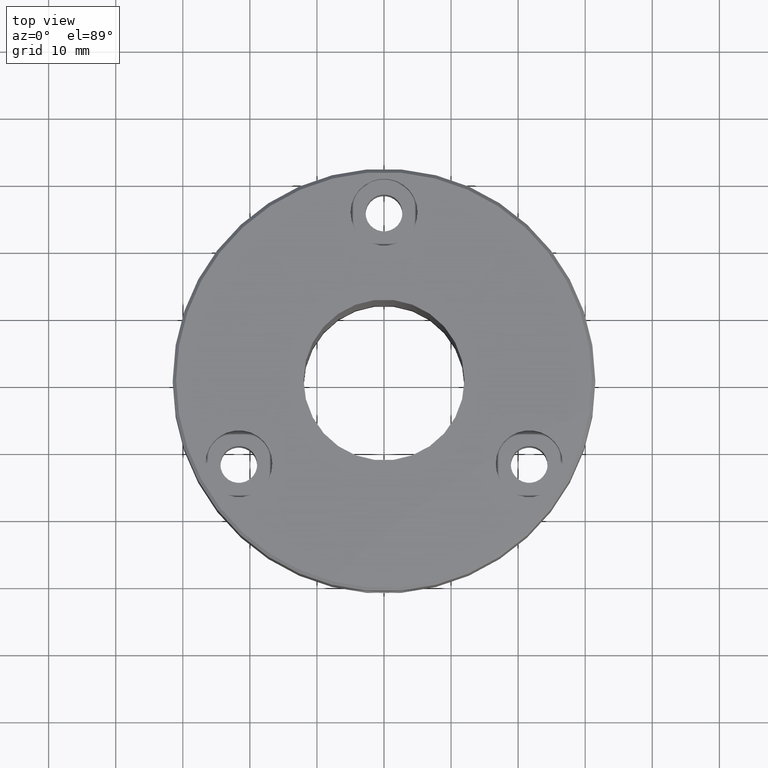
[diagram: clean part render]
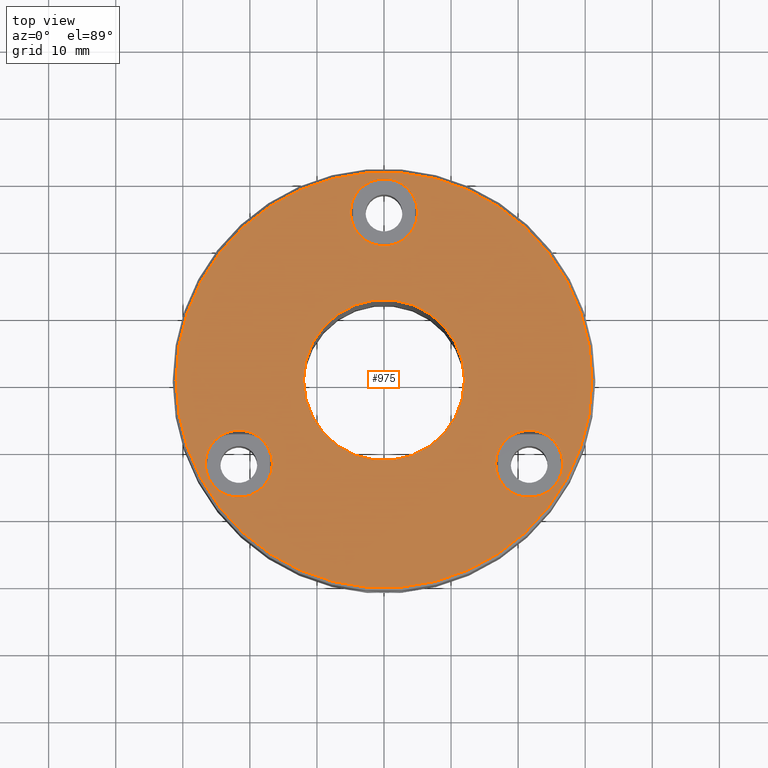
[diagram: same view with one face highlighted and labeled with its STEP entity id]
A machine part, top view. The second image highlights one B-rep face of the part: STEP entity #975.
In plain terms, the highlighted planar face has unit normal (0, -0, 1).
Its self-contained STEP definition (entity closure, byte-faithful):
#47 = FACE_OUTER_BOUND ( 'NONE', #851, .T. ) ;
#56 = AXIS2_PLACEMENT_3D ( 'NONE', #1144, #84, #571 ) ;
#66 = FACE_BOUND ( 'NONE', #717, .T. ) ;
#76 = EDGE_LOOP ( 'NONE', ( #656, #350 ) ) ;
#82 = CIRCLE ( 'NONE', #169, 12.00000000000000178 ) ;
#83 = CARTESIAN_POINT ( 'NONE',  ( -21.65063509461100111, -12.49999999999995381, 0.000000000000000000 ) ) ;
#84 = DIRECTION ( 'NONE',  ( 0.000000000000000000, 0.000000000000000000, -1.000000000000000000 ) ) ;
#102 = DIRECTION ( 'NONE',  ( 1.000000000000000000, 0.000000000000000000, 0.000000000000000000 ) ) ;
#141 = CARTESIAN_POINT ( 'NONE',  ( 26.65063509461091940, -12.50000000000010125, 0.000000000000000000 ) ) ;
#142 = AXIS2_PLACEMENT_3D ( 'NONE', #691, #959, #102 ) ;
#145 = EDGE_CURVE ( 'NONE', #576, #363, #816, .T. ) ;
#169 = AXIS2_PLACEMENT_3D ( 'NONE', #488, #1080, #411 ) ;
#220 = VERTEX_POINT ( 'NONE', #986 ) ;
#227 = DIRECTION ( 'NONE',  ( 1.000000000000000000, 0.000000000000000000, 0.000000000000000000 ) ) ;
#251 = ORIENTED_EDGE ( 'NONE', *, *, #741, .F. ) ;
#259 = AXIS2_PLACEMENT_3D ( 'NONE', #471, #392, #299 ) ;
#297 = CARTESIAN_POINT ( 'NONE',  ( -26.65063509461100111, -12.49999999999995381, 0.000000000000000000 ) ) ;
#299 = DIRECTION ( 'NONE',  ( 1.000000000000000000, 0.000000000000000000, 0.000000000000000000 ) ) ;
#328 = AXIS2_PLACEMENT_3D ( 'NONE', #1124, #1183, #332 ) ;
#332 = DIRECTION ( 'NONE',  ( 1.000000000000000000, 0.000000000000000000, 0.000000000000000000 ) ) ;
#344 = ORIENTED_EDGE ( 'NONE', *, *, #1212, .T. ) ;
#347 = DIRECTION ( 'NONE',  ( 1.000000000000000000, 0.000000000000000000, 0.000000000000000000 ) ) ;
#350 = ORIENTED_EDGE ( 'NONE', *, *, #669, .F. ) ;
#363 = VERTEX_POINT ( 'NONE', #397 ) ;
#389 = AXIS2_PLACEMENT_3D ( 'NONE', #463, #844, #1149 ) ;
#391 = AXIS2_PLACEMENT_3D ( 'NONE', #910, #1221, #652 ) ;
#392 = DIRECTION ( 'NONE',  ( -0.000000000000000000, -0.000000000000000000, 1.000000000000000000 ) ) ;
#396 = EDGE_CURVE ( 'NONE', #911, #583, #564, .T. ) ;
#397 = CARTESIAN_POINT ( 'NONE',  ( -30.99999999999998579, 0.000000000000000000, 0.000000000000000000 ) ) ;
#405 = CIRCLE ( 'NONE', #1098, 5.000000000000000888 ) ;
#406 = EDGE_CURVE ( 'NONE', #583, #911, #620, .T. ) ;
#411 = DIRECTION ( 'NONE',  ( -1.000000000000000000, 0.000000000000000000, 0.000000000000000000 ) ) ;
#436 = CARTESIAN_POINT ( 'NONE',  ( 30.99999999999998579, 3.827021247335478113E-15, 0.000000000000000000 ) ) ;
#449 = CARTESIAN_POINT ( 'NONE',  ( -21.65063509461100111, -12.49999999999995381, 0.000000000000000000 ) ) ;
#459 = AXIS2_PLACEMENT_3D ( 'NONE', #449, #714, #347 ) ;
#462 = AXIS2_PLACEMENT_3D ( 'NONE', #955, #1058, #1042 ) ;
#463 = CARTESIAN_POINT ( 'NONE',  ( 21.65063509461091940, -12.50000000000010125, 0.000000000000000000 ) ) ;
#471 = CARTESIAN_POINT ( 'NONE',  ( 21.65063509461091940, -12.50000000000010125, 0.000000000000000000 ) ) ;
#481 = ORIENTED_EDGE ( 'NONE', *, *, #1065, .T. ) ;
#488 = CARTESIAN_POINT ( 'NONE',  ( 0.000000000000000000, 0.000000000000000000, 0.000000000000000000 ) ) ;
#497 = FACE_BOUND ( 'NONE', #648, .T. ) ;
#523 = ORIENTED_EDGE ( 'NONE', *, *, #1050, .T. ) ;
#561 = VERTEX_POINT ( 'NONE', #907 ) ;
#564 = CIRCLE ( 'NONE', #389, 5.000000000000000888 ) ;
#571 = DIRECTION ( 'NONE',  ( -1.000000000000000000, 0.000000000000000000, 0.000000000000000000 ) ) ;
#576 = VERTEX_POINT ( 'NONE', #436 ) ;
#583 = VERTEX_POINT ( 'NONE', #1017 ) ;
#620 = CIRCLE ( 'NONE', #259, 5.000000000000000888 ) ;
#621 = DIRECTION ( 'NONE',  ( -0.000000000000000000, -0.000000000000000000, 1.000000000000000000 ) ) ;
#644 = CIRCLE ( 'NONE', #1121, 5.000000000000000888 ) ;
#648 = EDGE_LOOP ( 'NONE', ( #251, #829 ) ) ;
#652 = DIRECTION ( 'NONE',  ( 1.000000000000000000, 0.000000000000000000, 0.000000000000000000 ) ) ;
#656 = ORIENTED_EDGE ( 'NONE', *, *, #978, .F. ) ;
#669 = EDGE_CURVE ( 'NONE', #220, #1150, #1046, .T. ) ;
#691 = CARTESIAN_POINT ( 'NONE',  ( 0.000000000000000000, 0.000000000000000000, 0.000000000000000000 ) ) ;
#693 = CARTESIAN_POINT ( 'NONE',  ( 5.000000000000000888, 25.00000000000001066, 0.000000000000000000 ) ) ;
#711 = CARTESIAN_POINT ( 'NONE',  ( 0.000000000000000000, 25.00000000000001066, 0.000000000000000000 ) ) ;
#714 = DIRECTION ( 'NONE',  ( -0.000000000000000000, -0.000000000000000000, 1.000000000000000000 ) ) ;
#717 = EDGE_LOOP ( 'NONE', ( #344, #481 ) ) ;
#738 = CARTESIAN_POINT ( 'NONE',  ( -12.00000000000000178, 0.000000000000000000, 0.000000000000000000 ) ) ;
#741 = EDGE_CURVE ( 'NONE', #1234, #753, #405, .T. ) ;
#753 = VERTEX_POINT ( 'NONE', #297 ) ;
#768 = DIRECTION ( 'NONE',  ( -0.000000000000000000, -0.000000000000000000, 1.000000000000000000 ) ) ;
#771 = ORIENTED_EDGE ( 'NONE', *, *, #406, .F. ) ;
#816 = CIRCLE ( 'NONE', #142, 30.99999999999998579 ) ;
#829 = ORIENTED_EDGE ( 'NONE', *, *, #885, .F. ) ;
#844 = DIRECTION ( 'NONE',  ( -0.000000000000000000, -0.000000000000000000, 1.000000000000000000 ) ) ;
#851 = EDGE_LOOP ( 'NONE', ( #523, #1207 ) ) ;
#854 = DIRECTION ( 'NONE',  ( 1.000000000000000000, 0.000000000000000000, 0.000000000000000000 ) ) ;
#864 = EDGE_LOOP ( 'NONE', ( #1232, #771 ) ) ;
#882 = FACE_BOUND ( 'NONE', #864, .T. ) ;
#885 = EDGE_CURVE ( 'NONE', #753, #1234, #1028, .T. ) ;
#907 = CARTESIAN_POINT ( 'NONE',  ( 12.00000000000000178, 1.469576158976824144E-15, 0.000000000000000000 ) ) ;
#910 = CARTESIAN_POINT ( 'NONE',  ( 0.000000000000000000, 25.00000000000001066, 0.000000000000000000 ) ) ;
#911 = VERTEX_POINT ( 'NONE', #141 ) ;
#913 = VERTEX_POINT ( 'NONE', #738 ) ;
#932 = FACE_BOUND ( 'NONE', #76, .T. ) ;
#955 = CARTESIAN_POINT ( 'NONE',  ( 0.000000000000000000, 0.000000000000000000, 0.000000000000000000 ) ) ;
#959 = DIRECTION ( 'NONE',  ( -0.000000000000000000, -0.000000000000000000, 1.000000000000000000 ) ) ;
#975 = ADVANCED_FACE ( 'NONE', ( #497, #882, #932, #66, #47 ), #1210, .T. ) ;
#978 = EDGE_CURVE ( 'NONE', #1150, #220, #644, .T. ) ;
#986 = CARTESIAN_POINT ( 'NONE',  ( -5.000000000000000888, 25.00000000000001066, 0.000000000000000000 ) ) ;
#1017 = CARTESIAN_POINT ( 'NONE',  ( 16.65063509461091584, -12.50000000000010125, 0.000000000000000000 ) ) ;
#1028 = CIRCLE ( 'NONE', #459, 5.000000000000000888 ) ;
#1042 = DIRECTION ( 'NONE',  ( 1.000000000000000000, 0.000000000000000000, 0.000000000000000000 ) ) ;
#1046 = CIRCLE ( 'NONE', #391, 5.000000000000000888 ) ;
#1050 = EDGE_CURVE ( 'NONE', #363, #576, #1099, .T. ) ;
#1058 = DIRECTION ( 'NONE',  ( -0.000000000000000000, -0.000000000000000000, 1.000000000000000000 ) ) ;
#1065 = EDGE_CURVE ( 'NONE', #561, #913, #1157, .T. ) ;
#1080 = DIRECTION ( 'NONE',  ( 0.000000000000000000, 0.000000000000000000, -1.000000000000000000 ) ) ;
#1098 = AXIS2_PLACEMENT_3D ( 'NONE', #83, #768, #854 ) ;
#1099 = CIRCLE ( 'NONE', #462, 30.99999999999998579 ) ;
#1121 = AXIS2_PLACEMENT_3D ( 'NONE', #711, #621, #227 ) ;
#1124 = CARTESIAN_POINT ( 'NONE',  ( 0.000000000000000000, 0.000000000000000000, 0.000000000000000000 ) ) ;
#1144 = CARTESIAN_POINT ( 'NONE',  ( 0.000000000000000000, 0.000000000000000000, 0.000000000000000000 ) ) ;
#1149 = DIRECTION ( 'NONE',  ( 1.000000000000000000, 0.000000000000000000, 0.000000000000000000 ) ) ;
#1150 = VERTEX_POINT ( 'NONE', #693 ) ;
#1157 = CIRCLE ( 'NONE', #56, 12.00000000000000178 ) ;
#1171 = CARTESIAN_POINT ( 'NONE',  ( -16.65063509461100111, -12.49999999999995381, 0.000000000000000000 ) ) ;
#1183 = DIRECTION ( 'NONE',  ( 0.000000000000000000, -0.000000000000000000, 1.000000000000000000 ) ) ;
#1207 = ORIENTED_EDGE ( 'NONE', *, *, #145, .T. ) ;
#1210 = PLANE ( 'NONE',  #328 ) ;
#1212 = EDGE_CURVE ( 'NONE', #913, #561, #82, .T. ) ;
#1221 = DIRECTION ( 'NONE',  ( -0.000000000000000000, -0.000000000000000000, 1.000000000000000000 ) ) ;
#1232 = ORIENTED_EDGE ( 'NONE', *, *, #396, .F. ) ;
#1234 = VERTEX_POINT ( 'NONE', #1171 ) ;